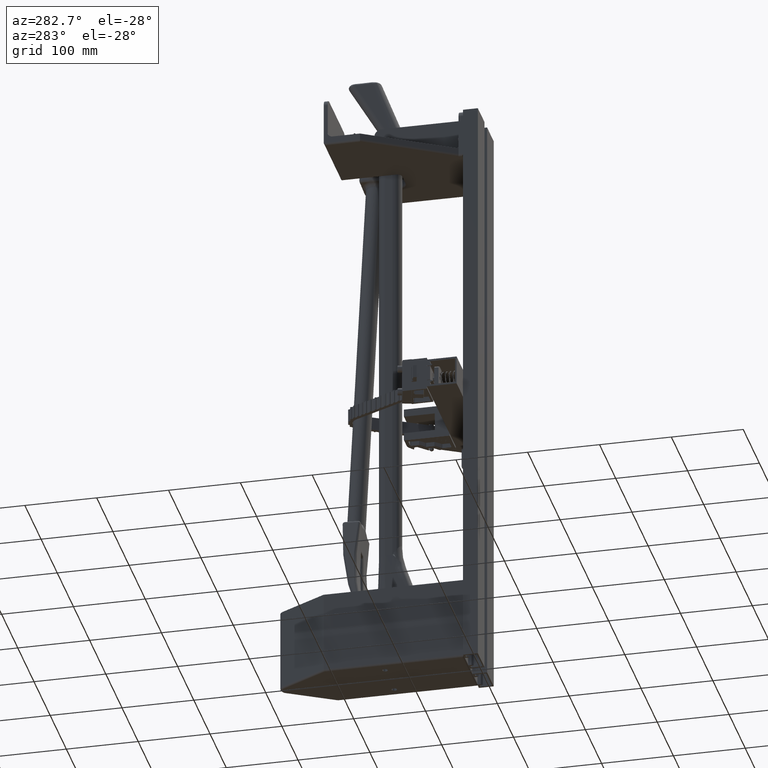
[diagram: clean part render]
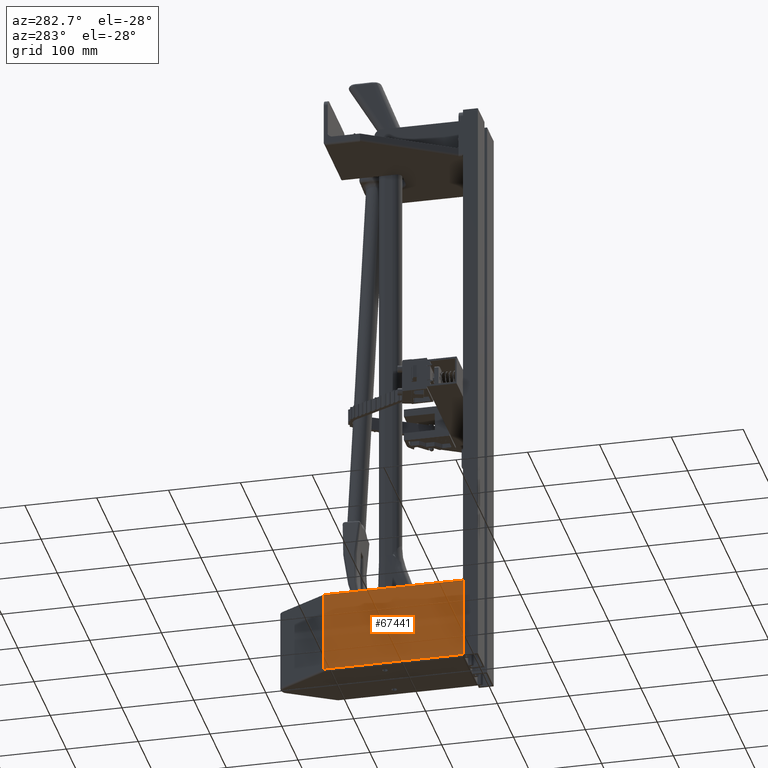
[diagram: same view with one face highlighted and labeled with its STEP entity id]
A machine part, auxiliary view. The second image highlights one B-rep face of the part: STEP entity #67441.
In plain terms, the highlighted planar face has unit normal (1, 0, 0).
Its self-contained STEP definition (entity closure, byte-faithful):
#1864 = CARTESIAN_POINT ( 'NONE',  ( -1.750000000000000400, 7.687500000000000000, 4.625000000000000000 ) ) ;
#1866 = DIRECTION ( 'NONE',  ( 7.107246812785074700E-017, -1.000000000000000000, 0.0000000000000000000 ) ) ;
#2013 = CARTESIAN_POINT ( 'NONE',  ( -1.750000000000000000, 0.0000000000000000000, 4.625000000000000000 ) ) ;
#2015 = DIRECTION ( 'NONE',  ( -0.0000000000000000000, -0.0000000000000000000, -1.000000000000000000 ) ) ;
#2059 = CARTESIAN_POINT ( 'NONE',  ( -1.750000000000000400, 7.655077942489416600, 4.625000000000000000 ) ) ;
#2061 = DIRECTION ( 'NONE',  ( 0.0000000000000000000, 0.0000000000000000000, -1.000000000000000000 ) ) ;
#2074 = CARTESIAN_POINT ( 'NONE',  ( -1.750000000000000400, 7.687500000000000000, 0.1249999999999999000 ) ) ;
#2076 = DIRECTION ( 'NONE',  ( 7.107246812785074700E-017, -1.000000000000000000, 0.0000000000000000000 ) ) ;
#10804 = AXIS2_PLACEMENT_3D ( 'NONE', #41988, #42006, #42008 ) ;
#18668 = FACE_OUTER_BOUND ( 'NONE', #32393, .T. ) ;
#19388 = CARTESIAN_POINT ( 'NONE',  ( -1.750000000000000400, 7.655077942489416600, 4.625000000000000000 ) ) ;
#19389 = CARTESIAN_POINT ( 'NONE',  ( -1.750000000000000000, 0.0000000000000000000, 4.625000000000000000 ) ) ;
#19408 = CARTESIAN_POINT ( 'NONE',  ( -1.750000000000000000, 0.0000000000000000000, 0.1250000000000004400 ) ) ;
#19413 = CARTESIAN_POINT ( 'NONE',  ( -1.750000000000000400, 7.655077942489416600, 0.1249999999999999000 ) ) ;
#22367 = ORIENTED_EDGE ( 'NONE', *, *, #71480, .F. ) ;
#22368 = ORIENTED_EDGE ( 'NONE', *, *, #71514, .T. ) ;
#22369 = ORIENTED_EDGE ( 'NONE', *, *, #71517, .T. ) ;
#22370 = ORIENTED_EDGE ( 'NONE', *, *, #71506, .F. ) ;
#32393 = EDGE_LOOP ( 'NONE', ( #22367, #22368, #22369, #22370 ) ) ;
#41988 = CARTESIAN_POINT ( 'NONE',  ( -1.750000000000000400, 7.687500000000000000, 4.625000000000000000 ) ) ;
#41990 = PLANE ( 'NONE',  #10804 ) ;
#42006 = DIRECTION ( 'NONE',  ( 1.000000000000000000, 7.107246812785074700E-017, -0.0000000000000000000 ) ) ;
#42008 = DIRECTION ( 'NONE',  ( -7.107246812785074700E-017, 1.000000000000000000, 0.0000000000000000000 ) ) ;
#59401 = LINE ( 'NONE', #1864, #59404 ) ;
#59404 = VECTOR ( 'NONE', #1866, 39.37007874015748100 ) ;
#59455 = LINE ( 'NONE', #2013, #59456 ) ;
#59456 = VECTOR ( 'NONE', #2015, 39.37007874015748100 ) ;
#59468 = LINE ( 'NONE', #2059, #59469 ) ;
#59469 = VECTOR ( 'NONE', #2061, 39.37007874015748100 ) ;
#59474 = LINE ( 'NONE', #2074, #59475 ) ;
#59475 = VECTOR ( 'NONE', #2076, 39.37007874015748100 ) ;
#65791 = VERTEX_POINT ( 'NONE', #19388 ) ;
#65793 = VERTEX_POINT ( 'NONE', #19389 ) ;
#65831 = VERTEX_POINT ( 'NONE', #19408 ) ;
#65841 = VERTEX_POINT ( 'NONE', #19413 ) ;
#67441 = ADVANCED_FACE ( 'NONE', ( #18668 ), #41990, .F. ) ;
#71480 = EDGE_CURVE ( 'NONE', #65791, #65793, #59401, .T. ) ;
#71506 = EDGE_CURVE ( 'NONE', #65793, #65831, #59455, .T. ) ;
#71514 = EDGE_CURVE ( 'NONE', #65791, #65841, #59468, .T. ) ;
#71517 = EDGE_CURVE ( 'NONE', #65841, #65831, #59474, .T. ) ;